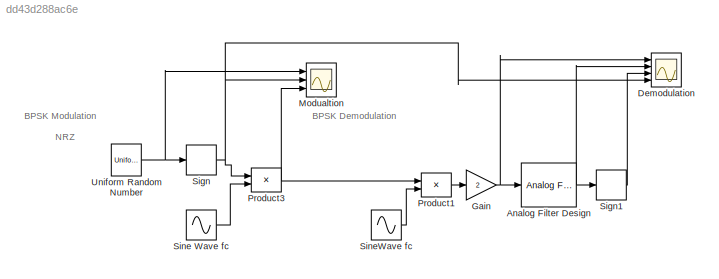
MODEL slx_dd43d288ac6e
KIND model
CONFIG AbsTol = auto
CONFIG EnableMultiTasking = off
CONFIG FixedStep = auto
CONFIG MaxStep = 0.01
CONFIG MinStep = 0.001
CONFIG RelTol = 1e-3
CONFIG SampleTimeConstraint = Unconstrained
CONFIG Solver = VariableStepAuto
CONFIG SolverName = VariableStepAuto
CONFIG StartTime = 0.0
CONFIG StopTime = 10.0
BLOCK [Reference] Analog Filter Design  REF=dsparch4/Analog
Filter Design
  Ports = [1, 1]
  SourceBlock = dsparch4/Analog\nFilter Design
  SourceProductBaseCode = DS
  SourceProductName = DSP System Toolbox
  SourceType = Analog Filter Design
BLOCK [Scope] Demodulation
  NumInputPorts = 4
  Ports = [4]
  ScopeSpecificationString = Simulink.scopes.TimeScopeBlockCfg('CurrentConfiguration', extmgr.ConfigurationSet(extmgr.Configuration('Core','General UI',true,'FigureColor',[0 0 0]),extmgr.Configuration('Core','Source UI',true),extmgr.Configuration('Sources','WiredSimulink',true),extmgr.Configuration('Visuals','Time Domain',true,'SerializedDisplays',{struct('MinYLimReal','-2.4985','MaxYLimReal','2.49843','YLabelReal','','MinYLi...<+3616ch>
BLOCK [Gain] Gain
  Gain = 2
  OutDataTypeStr = Inherit: Inherit via internal rule
  ParamDataTypeStr = Inherit: Inherit via internal rule
  SaturateOnIntegerOverflow = off
BLOCK [Scope] Modualtion
  NumInputPorts = 3
  Ports = [3]
  ScopeSpecificationString = Simulink.scopes.TimeScopeBlockCfg('CurrentConfiguration', extmgr.ConfigurationSet(extmgr.Configuration('Core','General UI',true,'FigureColor',[0 0 0]),extmgr.Configuration('Core','Source UI',true),extmgr.Configuration('Sources','WiredSimulink',true,'DataLoggingVariableName','ScopeData1'),extmgr.Configuration('Visuals','Time Domain',true,'SerializedDisplays',{struct('MinYLimReal','-1.15589','MaxYLi...<+3038ch>
BLOCK [Product] Product1
  Ports = [2, 1]
  RndMeth = Floor
BLOCK [Product] Product3
  Ports = [2, 1]
  RndMeth = Floor
BLOCK [Signum] Sign
BLOCK [Signum] Sign1
BLOCK [Sin] Sine Wave fc
  Frequency = 4*2*pi
  Ports = [0, 1]
  SampleTime = 0
BLOCK [Sin] SineWave fc
  Frequency = 4*2*pi
  Ports = [0, 1]
  SampleTime = 0
BLOCK [UniformRandomNumber] Uniform Random Number
  SampleTime = 1
ANNOTATION (root): BPSK Demodulation
ANNOTATION (root): BPSK Modulation
ANNOTATION (root): NRZ
NET Analog Filter Design:1 -> Demodulation:2, Sign1:1
NET Gain:1 -> Analog Filter Design:1, Demodulation:1
LINE Product1:1 -> Gain:1
NET Product3:1 -> Modualtion:3, Product1:1
LINE Sign1:1 -> Demodulation:3
NET Sign:1 -> Demodulation:4, Modualtion:2, Product3:1
LINE Sine Wave fc:1 -> Product3:2
LINE SineWave fc:1 -> Product1:2
NET Uniform Random Number:1 -> Modualtion:1, Sign:1
note: NET lines group one-source signal fan-out (src -> all destinations, sorted); 1:1 wires keep LINE
